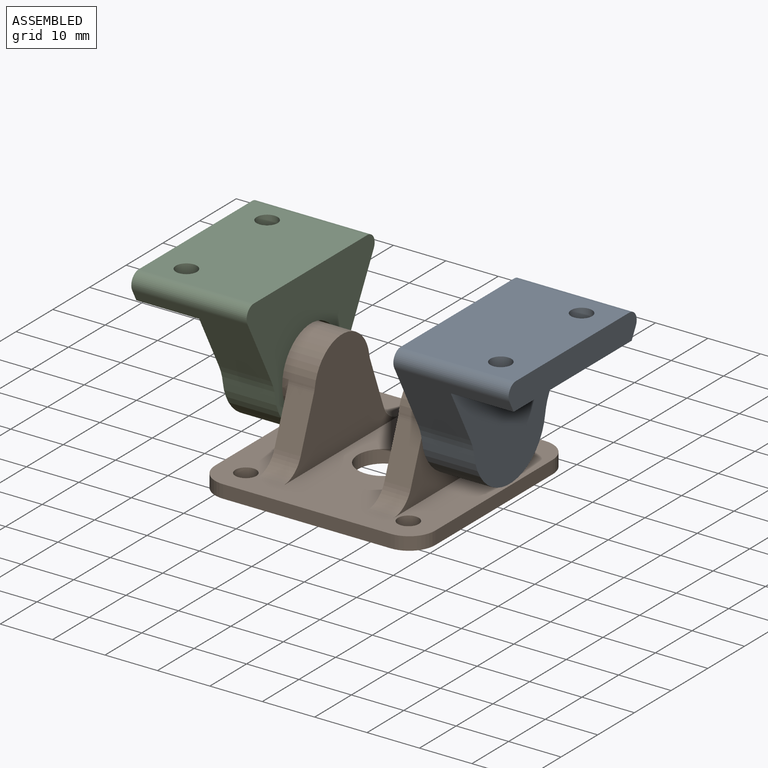
[diagram: assembled view]
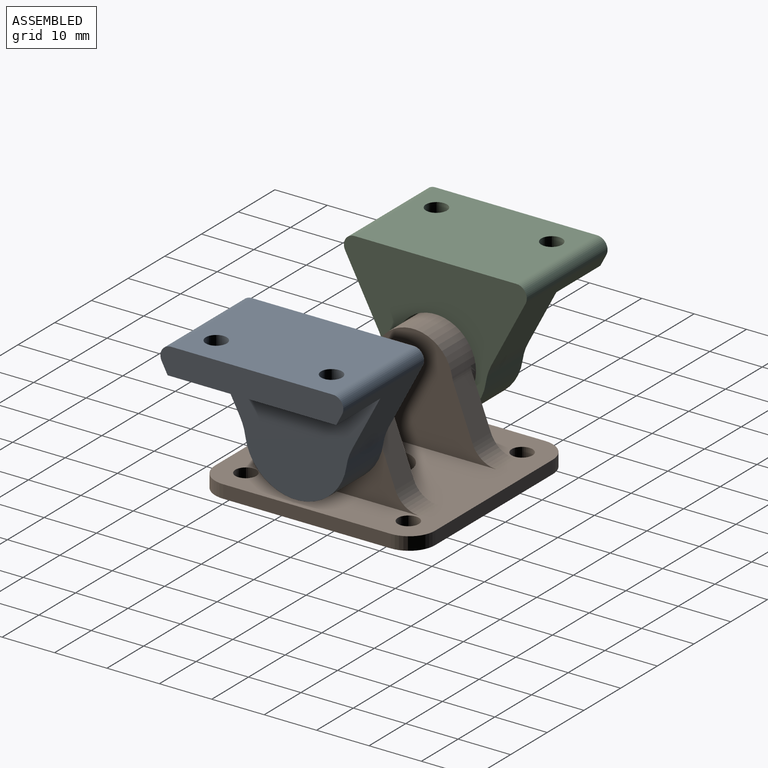
[diagram: assembled view, second angle]
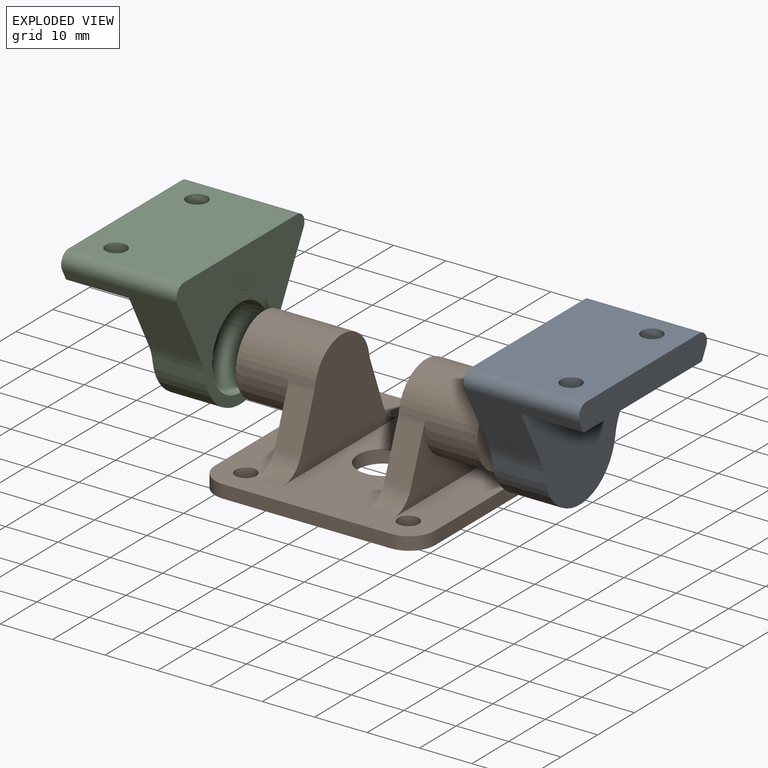
[diagram: exploded view]
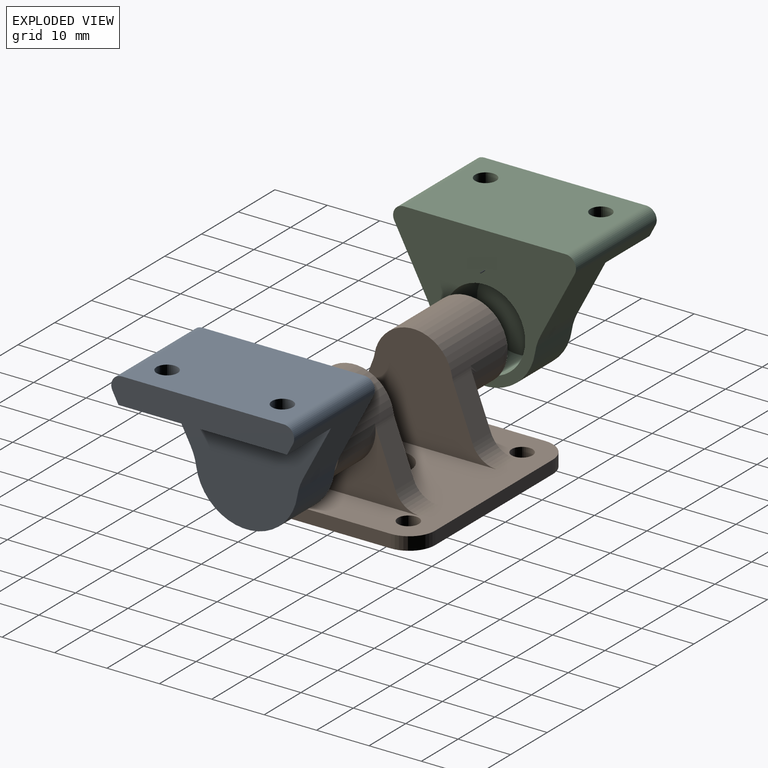
[diagram: exploded view, second angle]
ASSEMBLY  parts=3 mates=2
PART A: 18 faces, bbox 34.9x26.8x22 mm
  f0: cylinder r=7.75mm len=15.5mm, axis (0,0,-1), area 438.3mm2, adj f9,f17
  f1: cylinder r=10mm len=10mm, axis (0,0,-1), area 33.9mm2, adj f2,f8,f9,f11
  f2: plane 22x12.37mm, normal (-0.88,0.47,0), area 169.1mm2, adj f1,f3,f9,f10,f11,f12
  f3: cylinder r=2mm len=22mm, axis (0,0,-1), area 90.5mm2, adj f2,f4,f9,f10
  f4: plane 30.9x22mm, normal (0,-1,0), area 654.6mm2, adj f3,f5,f9,f10,f13,f15
  f5: cylinder r=2mm len=22mm, axis (0,0,-1), area 90.5mm2, adj f4,f6,f9,f10
  f6: plane 22x12.37mm, normal (0.88,0.47,0), area 169.1mm2, adj f5,f7,f9,f10,f11,f12
  f7: cylinder r=10mm len=10mm, axis (0,0,-1), area 33.9mm2, adj f6,f8,f9,f11
  f8: cylinder r=9.75mm len=19.29mm, axis (0,0,-1), area 277.8mm2, adj f1,f7,f9,f11
  f9: plane 34.9x26.84mm, normal (0,0,1), area 443.4mm2, adj f0,f1,f2,f3,f4,f5,f6,f7
  f10: plane 34.9x5.09mm, normal (0,0,-1), area 172.3mm2, adj f2,f3,f4,f5,f6,f12
  f11: plane 32.16x21.75mm, normal (0,0,-1), area 459.7mm2, adj f1,f2,f6,f7,f8,f12
  f12: plane 32.16x12mm, normal (0,1,0), area 228.9mm2, adj f2,f6,f10,f11,f14,f16
  f13: cylinder r=2mm len=4mm, axis (0,1,0), area 26.3mm2, adj f4,f14
  f14: cone r=2mm half-angle=45deg, axis (0,1,0), area 93.3mm2, adj f12,f13
  f15: cylinder r=2mm len=4mm, axis (0,1,0), area 26.3mm2, adj f4,f16
  f16: cone r=5mm half-angle=45deg, axis (0,1,0), area 93.3mm2, adj f12,f15
  f17: plane 15.5x15.5mm, normal (0,0,1), area 188.7mm2, adj f0
PART B: 37 faces, bbox 46x42x22.5 mm
  f0: plane 31.93x13.7mm, normal (-1,0,0), area 169.6mm2, adj f14,f26,f27,f30,f31,f32,f33,f34
  f1: plane 31.93x13.7mm, normal (1,0,0), area 169.6mm2, adj f14,f16,f18,f20,f21,f22,f23,f24
  f2: plane 32x2.5mm, normal (1,0,0), area 80mm2, adj f3,f13,f14,f15
  f3: cylinder r=5mm len=5mm, axis (0,0,-1), area 19.6mm2, adj f2,f4,f14,f15
  f4: plane 32x2.5mm, normal (0,1,0), area 80mm2, adj f3,f5,f14,f15
  f5: cylinder r=5mm len=5mm, axis (0,0,-1), area 19.6mm2, adj f4,f6,f14,f15
  f6: plane 32x2.5mm, normal (-1,0,0), area 80mm2, adj f5,f7,f14,f15
  f7: cylinder r=5mm len=5mm, axis (0,0,-1), area 19.6mm2, adj f6,f8,f14,f15
  f8: plane 32x2.5mm, normal (0,-1,0), area 80mm2, adj f7,f13,f14,f15
  f9: cylinder r=2mm len=4mm, axis (0,0,-1), area 31.4mm2, adj f14,f15
  f10: cylinder r=2mm len=4mm, axis (0,0,-1), area 31.4mm2, adj f14,f15
  f11: cylinder r=2mm len=4mm, axis (0,0,-1), area 31.4mm2, adj f14,f15
  f12: cylinder r=2mm len=4mm, axis (0,0,-1), area 31.4mm2, adj f14,f15
  f13: cylinder r=5mm len=5mm, axis (0,0,-1), area 19.6mm2, adj f2,f8,f14,f15
  f14: plane 42x42mm, normal (0,0,1), area 1294.4mm2, adj f0,f1,f2,f3,f4,f5,f6,f7
  f15: plane 42x42mm, normal (0,0,-1), area 1613.7mm2, adj f2,f3,f4,f5,f6,f7,f8,f9
  f16: plane 9.5x5mm, normal (0,0.93,0.36), area 50.8mm2, adj f1,f19,f20,f22
  f17: cylinder r=7.5mm len=15mm, axis (-1,0,0), area 317.3mm2, adj f19,f22,f23,f24,f25
  f18: plane 9.5x5mm, normal (0,-0.93,0.36), area 50.8mm2, adj f1,f19,f21,f23
  f19: plane 31.93x20mm, normal (-1,0,0), area 346.2mm2, adj f14,f16,f17,f18,f20,f21,f22,f23
  f20: cylinder r=5mm len=5mm, axis (1,0,0), area 30.2mm2, adj f1,f14,f16,f19
  f21: cylinder r=5mm len=5mm, axis (-1,0,0), area 30.2mm2, adj f1,f14,f18,f19
  f22: cylinder r=5mm len=5mm, axis (-1,0,0), area 5.1mm2, adj f1,f16,f17,f19
  f23: cylinder r=5mm len=5mm, axis (-1,0,0), area 5.1mm2, adj f1,f17,f18,f19
  f24: extruded ~14.98x10mm, area 259.7mm2, adj f1,f17,f25
  f25: plane 15.01x15mm, normal (1,0,0), area 176.7mm2, adj f17,f24
  f26: plane 9.5x5mm, normal (0,0.93,0.36), area 50.8mm2, adj f0,f29,f30,f32
  f27: plane 9.5x5mm, normal (0,-0.93,0.36), area 50.8mm2, adj f0,f29,f31,f33
  f28: cylinder r=7.5mm len=15mm, axis (1,0,0), area 317.3mm2, adj f29,f32,f33,f34,f35
  f29: plane 31.93x20mm, normal (1,0,0), area 346.2mm2, adj f14,f26,f27,f28,f30,f31,f32,f33
  f30: cylinder r=5mm len=5mm, axis (1,0,0), area 30.2mm2, adj f0,f14,f26,f29
  f31: cylinder r=5mm len=5mm, axis (-1,0,0), area 30.2mm2, adj f0,f14,f27,f29
  f32: cylinder r=5mm len=5mm, axis (1,0,0), area 5.1mm2, adj f0,f26,f28,f29
  f33: cylinder r=5mm len=5mm, axis (1,0,0), area 5.1mm2, adj f0,f27,f28,f29
  f34: extruded ~14.98x10mm, area 259.7mm2, adj f0,f28,f35
  f35: plane 15.01x15mm, normal (-1,0,0), area 176.7mm2, adj f28,f34
  f36: cylinder r=5mm len=10mm, axis (0,0,-1), area 78.5mm2, adj f14,f15
PART C: same geometry as A
PLACE A rot(axis=(-0.58,-0.58,0.58),120deg) t=(35.61,6.58,17.27)mm
PLACE B t=(-0.39,6.58,2.27)mm fixed
PLACE C rot(axis=(-0.58,0.58,-0.58),120deg) t=(-36.39,6.58,17.27)mm
MATE fastened C.f0 <-> B.f17  axis (1,0,0) through (-23.39,6.58,17.27)mm
MATE fastened A.f0 <-> B.f17  axis (-1,0,0) through (22.61,6.58,17.27)mm
